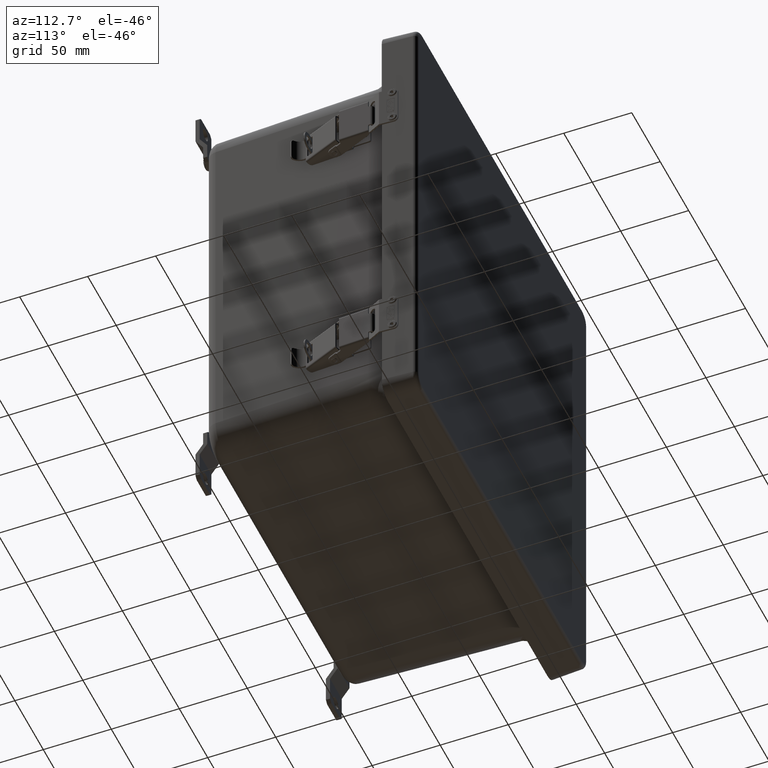
[diagram: clean part render]
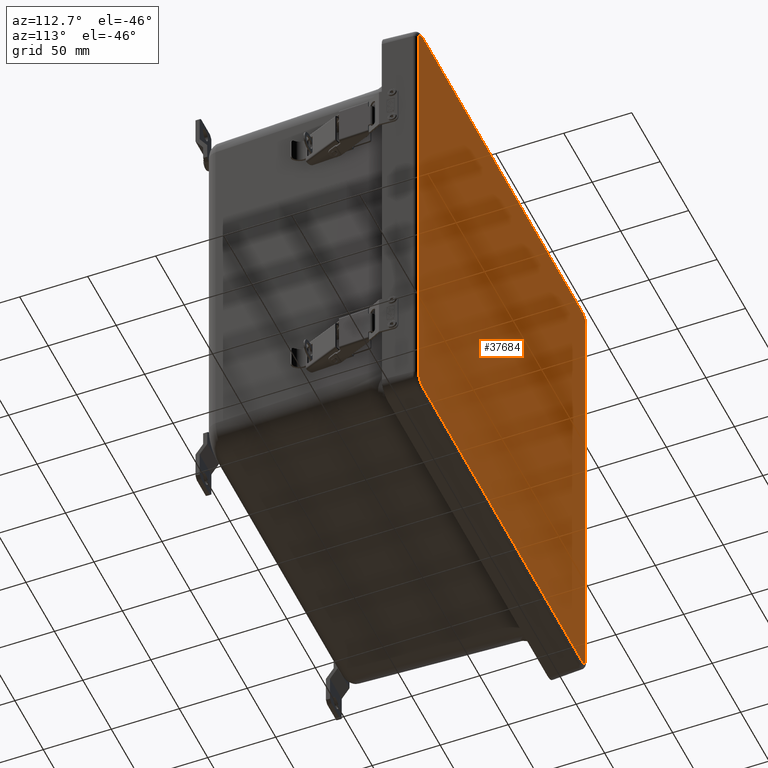
[diagram: same view with one face highlighted and labeled with its STEP entity id]
A machine part, auxiliary view. The second image highlights one B-rep face of the part: STEP entity #37684.
In plain terms, the highlighted planar face has unit normal (0, 1, 0).
Its self-contained STEP definition (entity closure, byte-faithful):
#126 = DIRECTION ( 'NONE',  ( 0.0000000000000000000, -1.000000000000000000, 0.0000000000000000000 ) ) ;
#454 = DIRECTION ( 'NONE',  ( 1.000000000000000000, -0.0000000000000000000, -0.0000000000000000000 ) ) ;
#600 = ORIENTED_EDGE ( 'NONE', *, *, #46552, .T. ) ;
#1603 = CARTESIAN_POINT ( 'NONE',  ( 6.715471649877600600, -1.000000000000000000, 5.511500000000000700 ) ) ;
#3279 = VECTOR ( 'NONE', #10816, 39.37007874015748100 ) ;
#4923 = EDGE_CURVE ( 'NONE', #42603, #42545, #17466, .T. ) ;
#6010 = VERTEX_POINT ( 'NONE', #51490 ) ;
#6456 = VECTOR ( 'NONE', #11887, 39.37007874015748100 ) ;
#6797 = ORIENTED_EDGE ( 'NONE', *, *, #9735, .T. ) ;
#7411 = ORIENTED_EDGE ( 'NONE', *, *, #32225, .T. ) ;
#8770 = AXIS2_PLACEMENT_3D ( 'NONE', #17368, #46507, #21521 ) ;
#8935 = CARTESIAN_POINT ( 'NONE',  ( -6.715471649877597900, -1.000000000000000000, -5.511500000000000700 ) ) ;
#9735 = EDGE_CURVE ( 'NONE', #21858, #39258, #34111, .T. ) ;
#10816 = DIRECTION ( 'NONE',  ( 1.982652993678137500E-016, -0.0000000000000000000, 1.000000000000000000 ) ) ;
#11733 = CARTESIAN_POINT ( 'NONE',  ( -6.449499999999998700, -1.000000000000000000, 5.777471649877599100 ) ) ;
#11771 = CARTESIAN_POINT ( 'NONE',  ( -6.449499999999998700, -1.000000000000000000, 5.511500000000000700 ) ) ;
#11824 = EDGE_CURVE ( 'NONE', #18975, #45890, #30367, .T. ) ;
#11887 = DIRECTION ( 'NONE',  ( -1.000000000000000000, -0.0000000000000000000, -0.0000000000000000000 ) ) ;
#13192 = LINE ( 'NONE', #21131, #34019 ) ;
#13799 = ORIENTED_EDGE ( 'NONE', *, *, #4923, .T. ) ;
#15915 = DIRECTION ( 'NONE',  ( 0.0000000000000000000, 0.0000000000000000000, -1.000000000000000000 ) ) ;
#17217 = ORIENTED_EDGE ( 'NONE', *, *, #11824, .T. ) ;
#17225 = DIRECTION ( 'NONE',  ( 0.0000000000000000000, -1.000000000000000000, 0.0000000000000000000 ) ) ;
#17323 = AXIS2_PLACEMENT_3D ( 'NONE', #20805, #126, #29222 ) ;
#17368 = CARTESIAN_POINT ( 'NONE',  ( -6.449500000000001300, -1.000000000000000000, -5.511500000000000700 ) ) ;
#17466 = LINE ( 'NONE', #28421, #6456 ) ;
#18056 = VECTOR ( 'NONE', #33841, 39.37007874015748100 ) ;
#18605 = EDGE_LOOP ( 'NONE', ( #7411, #47487, #13799, #27970, #600, #17217, #38731, #6797 ) ) ;
#18975 = VERTEX_POINT ( 'NONE', #33325 ) ;
#19486 = DIRECTION ( 'NONE',  ( 0.0000000000000000000, -1.000000000000000000, 0.0000000000000000000 ) ) ;
#20059 = AXIS2_PLACEMENT_3D ( 'NONE', #42195, #17225, #46358 ) ;
#20805 = CARTESIAN_POINT ( 'NONE',  ( -6.449500000000001300, -1.000000000000000000, -5.511500000000000700 ) ) ;
#21131 = CARTESIAN_POINT ( 'NONE',  ( -6.449500000000001300, -1.000000000000000000, -5.777471649877599100 ) ) ;
#21521 = DIRECTION ( 'NONE',  ( 0.0000000000000000000, 0.0000000000000000000, -1.000000000000000000 ) ) ;
#21858 = VERTEX_POINT ( 'NONE', #30185 ) ;
#22634 = FACE_OUTER_BOUND ( 'NONE', #18605, .T. ) ;
#25182 = EDGE_CURVE ( 'NONE', #42545, #6010, #44741, .T. ) ;
#27826 = LINE ( 'NONE', #8935, #18056 ) ;
#27970 = ORIENTED_EDGE ( 'NONE', *, *, #25182, .T. ) ;
#28421 = CARTESIAN_POINT ( 'NONE',  ( -6.449500000000001300, -1.000000000000000000, 5.777471649877597300 ) ) ;
#29222 = DIRECTION ( 'NONE',  ( 0.0000000000000000000, -0.0000000000000000000, -1.000000000000000000 ) ) ;
#30185 = CARTESIAN_POINT ( 'NONE',  ( 6.449500000000000500, -1.000000000000000000, -5.777471649877599100 ) ) ;
#30367 = CIRCLE ( 'NONE', #8770, 0.2659716498775981900 ) ;
#30394 = EDGE_CURVE ( 'NONE', #45890, #21858, #13192, .T. ) ;
#32225 = EDGE_CURVE ( 'NONE', #39258, #51025, #48846, .T. ) ;
#33325 = CARTESIAN_POINT ( 'NONE',  ( -6.715471649877599700, -1.000000000000000000, -5.511500000000000700 ) ) ;
#33558 = CARTESIAN_POINT ( 'NONE',  ( 6.449500000000001300, -1.000000000000000000, 5.777471649877599100 ) ) ;
#33841 = DIRECTION ( 'NONE',  ( -1.982652993678137500E-016, -0.0000000000000000000, -1.000000000000000000 ) ) ;
#34019 = VECTOR ( 'NONE', #454, 39.37007874015748100 ) ;
#34111 = CIRCLE ( 'NONE', #20059, 0.2659716498775981900 ) ;
#34511 = CARTESIAN_POINT ( 'NONE',  ( 6.715471649877597900, -1.000000000000000000, -5.511500000000000700 ) ) ;
#37684 = ADVANCED_FACE ( 'NONE', ( #22634 ), #49976, .T. ) ;
#38731 = ORIENTED_EDGE ( 'NONE', *, *, #30394, .T. ) ;
#39258 = VERTEX_POINT ( 'NONE', #34511 ) ;
#39903 = CARTESIAN_POINT ( 'NONE',  ( 6.715471649877597900, -1.000000000000000000, -5.511500000000002500 ) ) ;
#40283 = AXIS2_PLACEMENT_3D ( 'NONE', #11771, #40875, #15915 ) ;
#40875 = DIRECTION ( 'NONE',  ( 0.0000000000000000000, -1.000000000000000000, 0.0000000000000000000 ) ) ;
#42195 = CARTESIAN_POINT ( 'NONE',  ( 6.449500000000000500, -1.000000000000000000, -5.511500000000000700 ) ) ;
#42311 = CIRCLE ( 'NONE', #47769, 0.2659716498775992500 ) ;
#42545 = VERTEX_POINT ( 'NONE', #11733 ) ;
#42603 = VERTEX_POINT ( 'NONE', #33558 ) ;
#44472 = CARTESIAN_POINT ( 'NONE',  ( 6.449500000000001300, -1.000000000000000000, 5.511500000000000700 ) ) ;
#44741 = CIRCLE ( 'NONE', #40283, 0.2659716498775981900 ) ;
#45890 = VERTEX_POINT ( 'NONE', #48452 ) ;
#45940 = EDGE_CURVE ( 'NONE', #51025, #42603, #42311, .T. ) ;
#46358 = DIRECTION ( 'NONE',  ( 0.0000000000000000000, 0.0000000000000000000, -1.000000000000000000 ) ) ;
#46507 = DIRECTION ( 'NONE',  ( 0.0000000000000000000, -1.000000000000000000, 0.0000000000000000000 ) ) ;
#46552 = EDGE_CURVE ( 'NONE', #6010, #18975, #27826, .T. ) ;
#47487 = ORIENTED_EDGE ( 'NONE', *, *, #45940, .T. ) ;
#47769 = AXIS2_PLACEMENT_3D ( 'NONE', #44472, #19486, #48636 ) ;
#48452 = CARTESIAN_POINT ( 'NONE',  ( -6.449500000000002200, -1.000000000000000000, -5.777471649877599100 ) ) ;
#48636 = DIRECTION ( 'NONE',  ( 0.0000000000000000000, 0.0000000000000000000, -1.000000000000000000 ) ) ;
#48846 = LINE ( 'NONE', #39903, #3279 ) ;
#49976 = PLANE ( 'NONE',  #17323 ) ;
#51025 = VERTEX_POINT ( 'NONE', #1603 ) ;
#51490 = CARTESIAN_POINT ( 'NONE',  ( -6.715471649877596100, -1.000000000000000000, 5.511500000000000700 ) ) ;